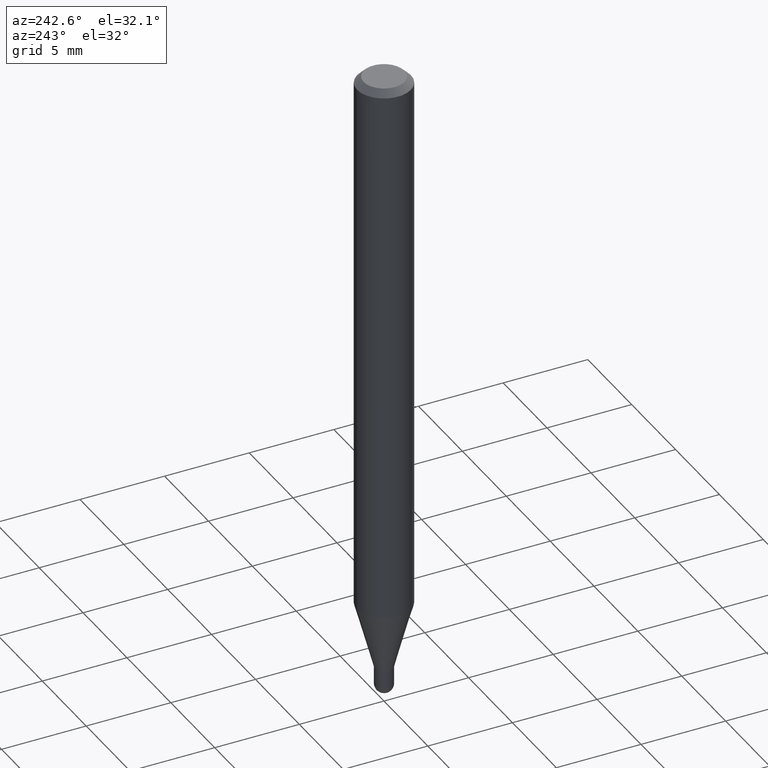
[diagram: clean part render]
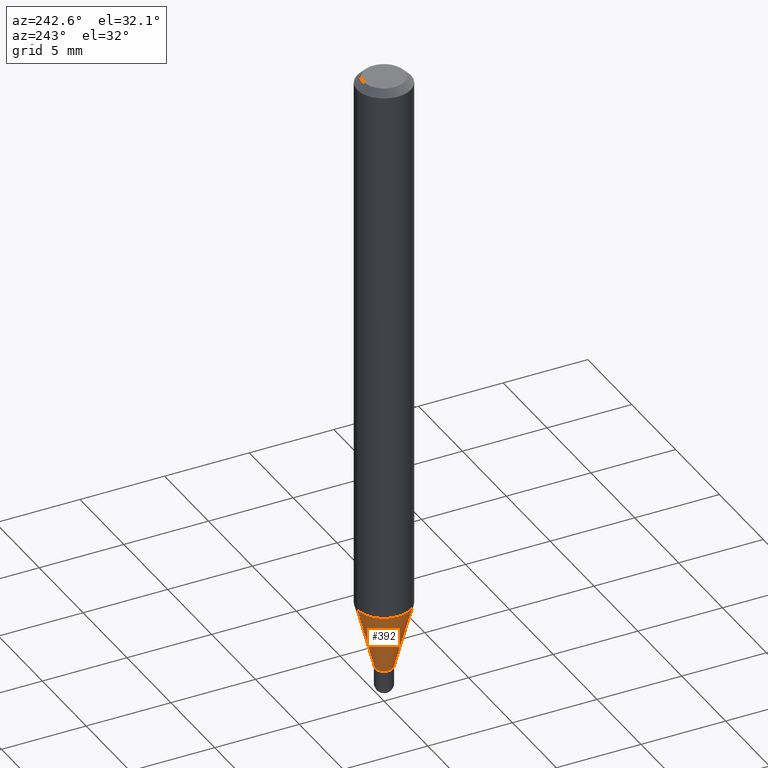
[diagram: same view with one face highlighted and labeled with its STEP entity id]
A machine part, auxiliary view. The second image highlights one B-rep face of the part: STEP entity #392.
In plain terms, the highlighted conical surface has half-angle 15 deg.
Its self-contained STEP definition (entity closure, byte-faithful):
#7 = CIRCLE ( 'NONE', #184, 0.02099999999999992498 ) ;
#22 = ORIENTED_EDGE ( 'NONE', *, *, #103, .F. ) ;
#23 = VECTOR ( 'NONE', #402, 39.37007874015748854 ) ;
#25 = CARTESIAN_POINT ( 'NONE',  ( 3.514122874244100185E-29, -5.017281310766218932E-15, -1.437000000000000055 ) ) ;
#32 = VECTOR ( 'NONE', #136, 39.37007874015748854 ) ;
#55 = CIRCLE ( 'NONE', #138, 0.06250000000000000000 ) ;
#60 = DIRECTION ( 'NONE',  ( -2.445457810886639076E-29, 3.491497084736407816E-15, 1.000000000000000000 ) ) ;
#77 = VERTEX_POINT ( 'NONE', #375 ) ;
#80 = EDGE_CURVE ( 'NONE', #370, #512, #7, .T. ) ;
#82 = ORIENTED_EDGE ( 'NONE', *, *, #289, .F. ) ;
#103 = EDGE_CURVE ( 'NONE', #158, #77, #55, .T. ) ;
#106 = CARTESIAN_POINT ( 'NONE',  ( -1.466422162313759286E-16, -0.02100000000000494180, -1.437000000000000055 ) ) ;
#128 = LINE ( 'NONE', #371, #32 ) ;
#136 = DIRECTION ( 'NONE',  ( 1.839019923739649619E-15, 0.2588190451025318972, 0.9659258262890650926 ) ) ;
#138 = AXIS2_PLACEMENT_3D ( 'NONE', #424, #275, #384 ) ;
#149 = DIRECTION ( 'NONE',  ( -6.982962677686266711E-15, -1.000000000000000000, 0.000000000000000000 ) ) ;
#158 = VERTEX_POINT ( 'NONE', #439 ) ;
#184 = AXIS2_PLACEMENT_3D ( 'NONE', #25, #504, #149 ) ;
#185 = AXIS2_PLACEMENT_3D ( 'NONE', #363, #60, #357 ) ;
#221 = ORIENTED_EDGE ( 'NONE', *, *, #376, .T. ) ;
#229 = EDGE_LOOP ( 'NONE', ( #82, #407, #221, #22 ) ) ;
#247 = LINE ( 'NONE', #290, #23 ) ;
#275 = DIRECTION ( 'NONE',  ( -2.445457810886639076E-29, 3.491497084736407816E-15, 1.000000000000000000 ) ) ;
#289 = EDGE_CURVE ( 'NONE', #370, #158, #128, .T. ) ;
#290 = CARTESIAN_POINT ( 'NONE',  ( -1.466422162313759286E-16, -0.02100000000000494180, -1.437000000000000055 ) ) ;
#326 = FACE_OUTER_BOUND ( 'NONE', #229, .T. ) ;
#357 = DIRECTION ( 'NONE',  ( -6.982962677686266711E-15, -1.000000000000000000, 0.000000000000000000 ) ) ;
#360 = CONICAL_SURFACE ( 'NONE', #185, 0.02099999999999992498, 0.2617993877991575125 ) ;
#363 = CARTESIAN_POINT ( 'NONE',  ( 3.514122874244100185E-29, -5.017281310766218932E-15, -1.437000000000000055 ) ) ;
#370 = VERTEX_POINT ( 'NONE', #447 ) ;
#371 = CARTESIAN_POINT ( 'NONE',  ( 1.492139745096556349E-16, 0.02099999999999491163, -1.437000000000000055 ) ) ;
#375 = CARTESIAN_POINT ( 'NONE',  ( -4.364351673553604601E-16, -0.06250000000000449640, -1.282119891485896002 ) ) ;
#376 = EDGE_CURVE ( 'NONE', #512, #77, #247, .T. ) ;
#384 = DIRECTION ( 'NONE',  ( -6.982962677686265922E-15, -1.000000000000000000, 4.370956789862821150E-15 ) ) ;
#392 = ADVANCED_FACE ( 'NONE', ( #326 ), #360, .T. ) ;
#402 = DIRECTION ( 'NONE',  ( -1.807323732225379049E-15, -0.2588190451025252359, 0.9659258262890670910 ) ) ;
#407 = ORIENTED_EDGE ( 'NONE', *, *, #80, .T. ) ;
#424 = CARTESIAN_POINT ( 'NONE',  ( 3.135370103127315125E-29, -4.476517863405566177E-15, -1.282119891485896224 ) ) ;
#439 = CARTESIAN_POINT ( 'NONE',  ( 4.440892098500937762E-16, 0.06249999999999551747, -1.282119891485896668 ) ) ;
#447 = CARTESIAN_POINT ( 'NONE',  ( 2.966515921798749274E-16, 0.02099999999999491163, -1.437000000000000055 ) ) ;
#504 = DIRECTION ( 'NONE',  ( -2.445457810886639076E-29, 3.491497084736407816E-15, 1.000000000000000000 ) ) ;
#512 = VERTEX_POINT ( 'NONE', #106 ) ;